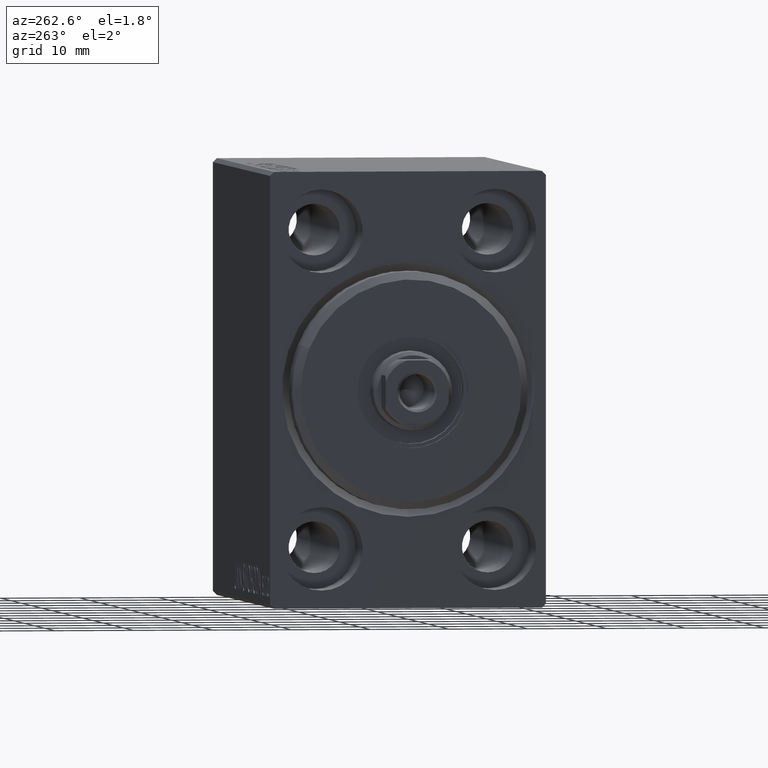
[diagram: clean part render]
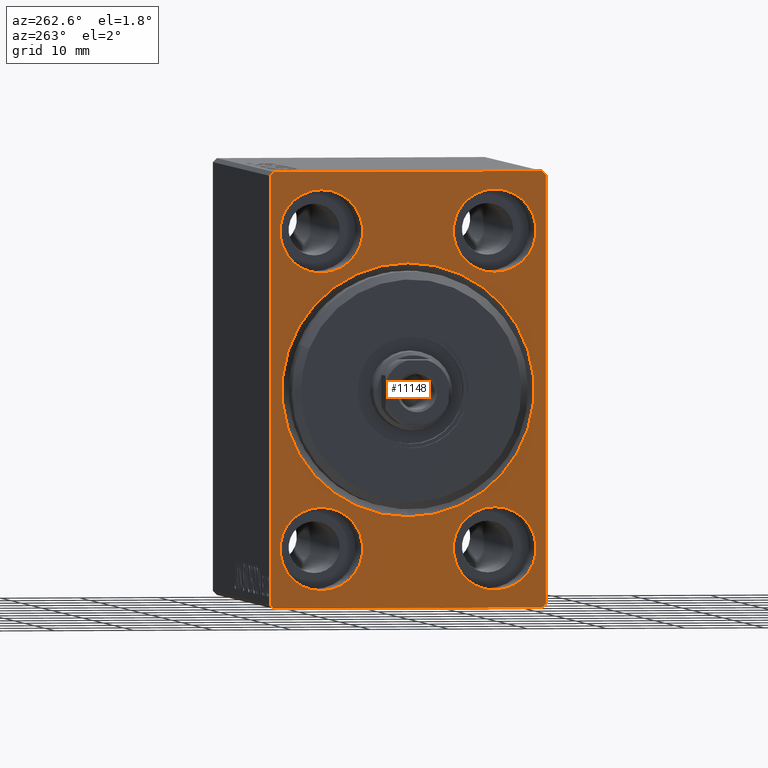
[diagram: same view with one face highlighted and labeled with its STEP entity id]
A machine part, auxiliary view. The second image highlights one B-rep face of the part: STEP entity #11148.
In plain terms, the highlighted planar face has unit normal (1, 0, 0).
Its self-contained STEP definition (entity closure, byte-faithful):
#226 = DIRECTION ( 'NONE',  ( -1.000000000000000000, 0.000000000000000000, 0.000000000000000000 ) ) ;
#342 = CIRCLE ( 'NONE', #5994, 5.250000000000000888 ) ;
#444 = VERTEX_POINT ( 'NONE', #8012 ) ;
#1708 = CARTESIAN_POINT ( 'NONE',  ( 0.000000000000000000, -16.99999999999999289, -27.50000000000000355 ) ) ;
#1866 = ORIENTED_EDGE ( 'NONE', *, *, #38447, .F. ) ;
#2720 = VERTEX_POINT ( 'NONE', #35478 ) ;
#2767 = VECTOR ( 'NONE', #12781, 1000.000000000000000 ) ;
#2828 = AXIS2_PLACEMENT_3D ( 'NONE', #35981, #42439, #33100 ) ;
#3026 = CARTESIAN_POINT ( 'NONE',  ( 0.000000000000000000, -17.50000000000000000, 27.49999999999999645 ) ) ;
#3093 = CARTESIAN_POINT ( 'NONE',  ( 0.000000000000000000, 17.50000000000000711, -27.00000000000000355 ) ) ;
#3103 = DIRECTION ( 'NONE',  ( 0.000000000000000000, 0.000000000000000000, 1.000000000000000000 ) ) ;
#3141 = DIRECTION ( 'NONE',  ( 0.000000000000000000, 0.000000000000000000, 1.000000000000000000 ) ) ;
#3216 = ORIENTED_EDGE ( 'NONE', *, *, #30152, .F. ) ;
#3420 = VERTEX_POINT ( 'NONE', #19796 ) ;
#4422 = EDGE_CURVE ( 'NONE', #3420, #8809, #342, .T. ) ;
#5275 = ORIENTED_EDGE ( 'NONE', *, *, #13316, .T. ) ;
#5512 = VECTOR ( 'NONE', #43548, 1000.000000000000114 ) ;
#5827 = ORIENTED_EDGE ( 'NONE', *, *, #41255, .F. ) ;
#5887 = ORIENTED_EDGE ( 'NONE', *, *, #15548, .F. ) ;
#5895 = CARTESIAN_POINT ( 'NONE',  ( 0.000000000000000000, 1.959434878635766709E-15, -16.00000000000001421 ) ) ;
#5994 = AXIS2_PLACEMENT_3D ( 'NONE', #7304, #226, #36845 ) ;
#6189 = AXIS2_PLACEMENT_3D ( 'NONE', #17635, #10974, #10536 ) ;
#6322 = ORIENTED_EDGE ( 'NONE', *, *, #34315, .T. ) ;
#6354 = LINE ( 'NONE', #3026, #2767 ) ;
#6464 = LINE ( 'NONE', #29526, #16137 ) ;
#6478 = EDGE_CURVE ( 'NONE', #6601, #20785, #34405, .T. ) ;
#6601 = VERTEX_POINT ( 'NONE', #25937 ) ;
#7304 = CARTESIAN_POINT ( 'NONE',  ( 0.000000000000000000, -11.00000000000000355, -20.00000000000000000 ) ) ;
#7626 = AXIS2_PLACEMENT_3D ( 'NONE', #18241, #27201, #21573 ) ;
#8012 = CARTESIAN_POINT ( 'NONE',  ( 0.000000000000000000, -16.99999999999999289, -27.50000000000000355 ) ) ;
#8809 = VERTEX_POINT ( 'NONE', #26161 ) ;
#8994 = VERTEX_POINT ( 'NONE', #18138 ) ;
#9298 = CIRCLE ( 'NONE', #25610, 5.250000000000000888 ) ;
#9344 = DIRECTION ( 'NONE',  ( -0.000000000000000000, 0.7071067811865474617, -0.7071067811865474617 ) ) ;
#10004 = CARTESIAN_POINT ( 'NONE',  ( 0.000000000000000000, 0.000000000000000000, 16.00000000000001421 ) ) ;
#10536 = DIRECTION ( 'NONE',  ( 0.000000000000000000, 0.000000000000000000, -1.000000000000000000 ) ) ;
#10785 = AXIS2_PLACEMENT_3D ( 'NONE', #24866, #25301, #38419 ) ;
#10923 = EDGE_CURVE ( 'NONE', #444, #8994, #28966, .T. ) ;
#10974 = DIRECTION ( 'NONE',  ( 1.000000000000000000, 0.000000000000000000, 0.000000000000000000 ) ) ;
#11148 = ADVANCED_FACE ( 'NONE', ( #28255, #13875, #14310, #31595, #27397, #11403 ), #37628, .F. ) ;
#11323 = VERTEX_POINT ( 'NONE', #42259 ) ;
#11403 = FACE_OUTER_BOUND ( 'NONE', #26938, .T. ) ;
#11420 = CIRCLE ( 'NONE', #33422, 5.250000000000000888 ) ;
#11438 = DIRECTION ( 'NONE',  ( 0.000000000000000000, 1.000000000000000000, 0.000000000000000000 ) ) ;
#11487 = CIRCLE ( 'NONE', #33487, 5.250000000000000888 ) ;
#11635 = EDGE_CURVE ( 'NONE', #37384, #35440, #6464, .T. ) ;
#11894 = CARTESIAN_POINT ( 'NONE',  ( 0.000000000000000000, 11.00000000000000355, -25.25000000000000000 ) ) ;
#11918 = ORIENTED_EDGE ( 'NONE', *, *, #30328, .F. ) ;
#12414 = ORIENTED_EDGE ( 'NONE', *, *, #14689, .T. ) ;
#12450 = CARTESIAN_POINT ( 'NONE',  ( 0.000000000000000000, 11.00000000000000355, 20.00000000000000000 ) ) ;
#12695 = ORIENTED_EDGE ( 'NONE', *, *, #11635, .T. ) ;
#12781 = DIRECTION ( 'NONE',  ( 0.000000000000000000, 0.000000000000000000, -1.000000000000000000 ) ) ;
#13106 = CARTESIAN_POINT ( 'NONE',  ( 0.000000000000000000, -11.00000000000000355, -20.00000000000000000 ) ) ;
#13138 = EDGE_CURVE ( 'NONE', #29835, #38899, #25362, .T. ) ;
#13316 = EDGE_CURVE ( 'NONE', #42281, #11323, #36663, .T. ) ;
#13318 = DIRECTION ( 'NONE',  ( -1.000000000000000000, 0.000000000000000000, 0.000000000000000000 ) ) ;
#13871 = DIRECTION ( 'NONE',  ( 1.000000000000000000, 0.000000000000000000, 0.000000000000000000 ) ) ;
#13875 = FACE_BOUND ( 'NONE', #41205, .T. ) ;
#14061 = AXIS2_PLACEMENT_3D ( 'NONE', #17419, #13871, #40747 ) ;
#14310 = FACE_BOUND ( 'NONE', #38743, .T. ) ;
#14501 = VERTEX_POINT ( 'NONE', #24993 ) ;
#14689 = EDGE_CURVE ( 'NONE', #33050, #28356, #35308, .T. ) ;
#14910 = DIRECTION ( 'NONE',  ( 0.000000000000000000, -1.000000000000000000, -1.982541115402065110E-16 ) ) ;
#15036 = CIRCLE ( 'NONE', #10785, 16.00000000000001421 ) ;
#15389 = ORIENTED_EDGE ( 'NONE', *, *, #18139, .F. ) ;
#15548 = EDGE_CURVE ( 'NONE', #42281, #8994, #6354, .T. ) ;
#16137 = VECTOR ( 'NONE', #9344, 1000.000000000000114 ) ;
#16183 = DIRECTION ( 'NONE',  ( 0.000000000000000000, -0.7071067811865474617, -0.7071067811865474617 ) ) ;
#16703 = CARTESIAN_POINT ( 'NONE',  ( 0.000000000000000000, 17.50000000000000711, -27.50000000000000355 ) ) ;
#16866 = ORIENTED_EDGE ( 'NONE', *, *, #37905, .T. ) ;
#16888 = DIRECTION ( 'NONE',  ( -1.000000000000000000, 0.000000000000000000, 0.000000000000000000 ) ) ;
#17320 = CARTESIAN_POINT ( 'NONE',  ( 0.000000000000000000, 11.00000000000000355, -20.00000000000000000 ) ) ;
#17419 = CARTESIAN_POINT ( 'NONE',  ( 0.000000000000000000, 0.000000000000000000, 0.000000000000000000 ) ) ;
#17635 = CARTESIAN_POINT ( 'NONE',  ( 0.000000000000000000, 0.000000000000000000, 0.000000000000000000 ) ) ;
#18059 = CARTESIAN_POINT ( 'NONE',  ( 0.000000000000000000, 17.50000000000000711, -27.00000000000000355 ) ) ;
#18117 = AXIS2_PLACEMENT_3D ( 'NONE', #17320, #16888, #3141 ) ;
#18138 = CARTESIAN_POINT ( 'NONE',  ( 0.000000000000000000, -17.50000000000000000, -26.99999999999999645 ) ) ;
#18139 = EDGE_CURVE ( 'NONE', #14501, #40397, #38961, .T. ) ;
#18241 = CARTESIAN_POINT ( 'NONE',  ( 0.000000000000000000, 11.00000000000000355, 20.00000000000000000 ) ) ;
#19796 = CARTESIAN_POINT ( 'NONE',  ( 0.000000000000000000, -11.00000000000000355, -25.25000000000000000 ) ) ;
#20015 = AXIS2_PLACEMENT_3D ( 'NONE', #36830, #33497, #3103 ) ;
#20535 = CARTESIAN_POINT ( 'NONE',  ( 0.000000000000000000, 17.50000000000000000, 27.50000000000000355 ) ) ;
#20785 = VERTEX_POINT ( 'NONE', #11894 ) ;
#21350 = LINE ( 'NONE', #20535, #22037 ) ;
#21573 = DIRECTION ( 'NONE',  ( 0.000000000000000000, 0.000000000000000000, 1.000000000000000000 ) ) ;
#22037 = VECTOR ( 'NONE', #14910, 1000.000000000000000 ) ;
#22088 = LINE ( 'NONE', #35177, #38417 ) ;
#22398 = CARTESIAN_POINT ( 'NONE',  ( 0.000000000000000000, -17.50000000000000000, 26.99999999999998934 ) ) ;
#22516 = CARTESIAN_POINT ( 'NONE',  ( 0.000000000000000000, 16.99999999999999289, 27.50000000000000355 ) ) ;
#23144 = DIRECTION ( 'NONE',  ( 0.000000000000000000, -1.261617073437677752E-16, 1.000000000000000000 ) ) ;
#24288 = ORIENTED_EDGE ( 'NONE', *, *, #13138, .F. ) ;
#24866 = CARTESIAN_POINT ( 'NONE',  ( 0.000000000000000000, 0.000000000000000000, 0.000000000000000000 ) ) ;
#24868 = VERTEX_POINT ( 'NONE', #18059 ) ;
#24993 = CARTESIAN_POINT ( 'NONE',  ( 0.000000000000000000, -11.00000000000000355, 14.75000000000000000 ) ) ;
#25301 = DIRECTION ( 'NONE',  ( 1.000000000000000000, 0.000000000000000000, 0.000000000000000000 ) ) ;
#25362 = CIRCLE ( 'NONE', #7626, 5.250000000000000888 ) ;
#25610 = AXIS2_PLACEMENT_3D ( 'NONE', #12450, #31986, #29312 ) ;
#25842 = DIRECTION ( 'NONE',  ( -1.000000000000000000, 0.000000000000000000, 0.000000000000000000 ) ) ;
#25937 = CARTESIAN_POINT ( 'NONE',  ( 0.000000000000000000, 11.00000000000000355, -14.75000000000000000 ) ) ;
#26057 = EDGE_CURVE ( 'NONE', #37384, #11323, #21350, .T. ) ;
#26110 = CARTESIAN_POINT ( 'NONE',  ( 0.000000000000000000, 17.50000000000000000, 26.99999999999999645 ) ) ;
#26161 = CARTESIAN_POINT ( 'NONE',  ( 0.000000000000000000, -11.00000000000000355, -14.75000000000000000 ) ) ;
#26237 = LINE ( 'NONE', #16703, #35528 ) ;
#26496 = CARTESIAN_POINT ( 'NONE',  ( 0.000000000000000000, 11.00000000000000355, -20.00000000000000000 ) ) ;
#26844 = DIRECTION ( 'NONE',  ( 0.000000000000000000, 0.000000000000000000, 1.000000000000000000 ) ) ;
#26938 = EDGE_LOOP ( 'NONE', ( #5887, #5275, #37178, #12695, #35894, #6322, #1866, #43517 ) ) ;
#27201 = DIRECTION ( 'NONE',  ( -1.000000000000000000, 0.000000000000000000, 0.000000000000000000 ) ) ;
#27311 = CARTESIAN_POINT ( 'NONE',  ( 0.000000000000000000, 11.00000000000000355, 14.75000000000000000 ) ) ;
#27367 = EDGE_CURVE ( 'NONE', #24868, #35440, #26237, .T. ) ;
#27397 = FACE_BOUND ( 'NONE', #33507, .T. ) ;
#27797 = EDGE_CURVE ( 'NONE', #8809, #3420, #11420, .T. ) ;
#28255 = FACE_BOUND ( 'NONE', #38752, .T. ) ;
#28288 = EDGE_LOOP ( 'NONE', ( #5827, #24288 ) ) ;
#28356 = VERTEX_POINT ( 'NONE', #5895 ) ;
#28951 = ORIENTED_EDGE ( 'NONE', *, *, #6478, .F. ) ;
#28966 = LINE ( 'NONE', #1708, #41612 ) ;
#29312 = DIRECTION ( 'NONE',  ( 0.000000000000000000, 0.000000000000000000, 1.000000000000000000 ) ) ;
#29526 = CARTESIAN_POINT ( 'NONE',  ( 0.000000000000000000, 16.99999999999999289, 27.50000000000000355 ) ) ;
#29835 = VERTEX_POINT ( 'NONE', #27311 ) ;
#30152 = EDGE_CURVE ( 'NONE', #40397, #14501, #39159, .T. ) ;
#30328 = EDGE_CURVE ( 'NONE', #20785, #6601, #11487, .T. ) ;
#31595 = FACE_BOUND ( 'NONE', #28288, .T. ) ;
#31986 = DIRECTION ( 'NONE',  ( -1.000000000000000000, 0.000000000000000000, 0.000000000000000000 ) ) ;
#33050 = VERTEX_POINT ( 'NONE', #10004 ) ;
#33100 = DIRECTION ( 'NONE',  ( 0.000000000000000000, 0.000000000000000000, 1.000000000000000000 ) ) ;
#33160 = DIRECTION ( 'NONE',  ( 0.000000000000000000, 0.000000000000000000, 1.000000000000000000 ) ) ;
#33347 = VECTOR ( 'NONE', #16183, 1000.000000000000114 ) ;
#33422 = AXIS2_PLACEMENT_3D ( 'NONE', #13106, #13318, #26844 ) ;
#33487 = AXIS2_PLACEMENT_3D ( 'NONE', #26496, #25842, #33160 ) ;
#33497 = DIRECTION ( 'NONE',  ( -1.000000000000000000, 0.000000000000000000, 0.000000000000000000 ) ) ;
#33507 = EDGE_LOOP ( 'NONE', ( #40684, #41436 ) ) ;
#34315 = EDGE_CURVE ( 'NONE', #24868, #2720, #39939, .T. ) ;
#34405 = CIRCLE ( 'NONE', #18117, 5.250000000000000888 ) ;
#35177 = CARTESIAN_POINT ( 'NONE',  ( 0.000000000000000000, -17.50000000000000000, -27.50000000000000355 ) ) ;
#35308 = CIRCLE ( 'NONE', #14061, 16.00000000000001421 ) ;
#35412 = DIRECTION ( 'NONE',  ( -0.000000000000000000, -0.7071067811865474617, 0.7071067811865474617 ) ) ;
#35440 = VERTEX_POINT ( 'NONE', #26110 ) ;
#35478 = CARTESIAN_POINT ( 'NONE',  ( 0.000000000000000000, 17.00000000000000711, -27.50000000000000355 ) ) ;
#35528 = VECTOR ( 'NONE', #23144, 1000.000000000000000 ) ;
#35894 = ORIENTED_EDGE ( 'NONE', *, *, #27367, .F. ) ;
#35981 = CARTESIAN_POINT ( 'NONE',  ( 0.000000000000000000, -11.00000000000000355, 20.00000000000000000 ) ) ;
#36443 = CARTESIAN_POINT ( 'NONE',  ( 0.000000000000000000, -17.50000000000000000, 26.99999999999998934 ) ) ;
#36663 = LINE ( 'NONE', #36443, #5512 ) ;
#36830 = CARTESIAN_POINT ( 'NONE',  ( 0.000000000000000000, -11.00000000000000355, 20.00000000000000000 ) ) ;
#36845 = DIRECTION ( 'NONE',  ( 0.000000000000000000, 0.000000000000000000, 1.000000000000000000 ) ) ;
#37178 = ORIENTED_EDGE ( 'NONE', *, *, #26057, .F. ) ;
#37338 = CARTESIAN_POINT ( 'NONE',  ( 0.000000000000000000, 11.00000000000000355, 25.25000000000000000 ) ) ;
#37384 = VERTEX_POINT ( 'NONE', #22516 ) ;
#37628 = PLANE ( 'NONE',  #6189 ) ;
#37905 = EDGE_CURVE ( 'NONE', #28356, #33050, #15036, .T. ) ;
#38417 = VECTOR ( 'NONE', #11438, 1000.000000000000000 ) ;
#38419 = DIRECTION ( 'NONE',  ( 0.000000000000000000, 0.000000000000000000, -1.000000000000000000 ) ) ;
#38447 = EDGE_CURVE ( 'NONE', #444, #2720, #22088, .T. ) ;
#38743 = EDGE_LOOP ( 'NONE', ( #3216, #15389 ) ) ;
#38752 = EDGE_LOOP ( 'NONE', ( #12414, #16866 ) ) ;
#38899 = VERTEX_POINT ( 'NONE', #37338 ) ;
#38961 = CIRCLE ( 'NONE', #2828, 5.250000000000000888 ) ;
#39159 = CIRCLE ( 'NONE', #20015, 5.250000000000000888 ) ;
#39939 = LINE ( 'NONE', #3093, #33347 ) ;
#40397 = VERTEX_POINT ( 'NONE', #40586 ) ;
#40586 = CARTESIAN_POINT ( 'NONE',  ( 0.000000000000000000, -11.00000000000000355, 25.25000000000000000 ) ) ;
#40684 = ORIENTED_EDGE ( 'NONE', *, *, #27797, .F. ) ;
#40747 = DIRECTION ( 'NONE',  ( 0.000000000000000000, 0.000000000000000000, -1.000000000000000000 ) ) ;
#41205 = EDGE_LOOP ( 'NONE', ( #28951, #11918 ) ) ;
#41255 = EDGE_CURVE ( 'NONE', #38899, #29835, #9298, .T. ) ;
#41436 = ORIENTED_EDGE ( 'NONE', *, *, #4422, .F. ) ;
#41612 = VECTOR ( 'NONE', #35412, 1000.000000000000114 ) ;
#42259 = CARTESIAN_POINT ( 'NONE',  ( 0.000000000000000000, -16.99999999999999289, 27.49999999999999645 ) ) ;
#42281 = VERTEX_POINT ( 'NONE', #22398 ) ;
#42439 = DIRECTION ( 'NONE',  ( -1.000000000000000000, 0.000000000000000000, 0.000000000000000000 ) ) ;
#43517 = ORIENTED_EDGE ( 'NONE', *, *, #10923, .T. ) ;
#43548 = DIRECTION ( 'NONE',  ( -0.000000000000000000, 0.7071067811865474617, 0.7071067811865474617 ) ) ;